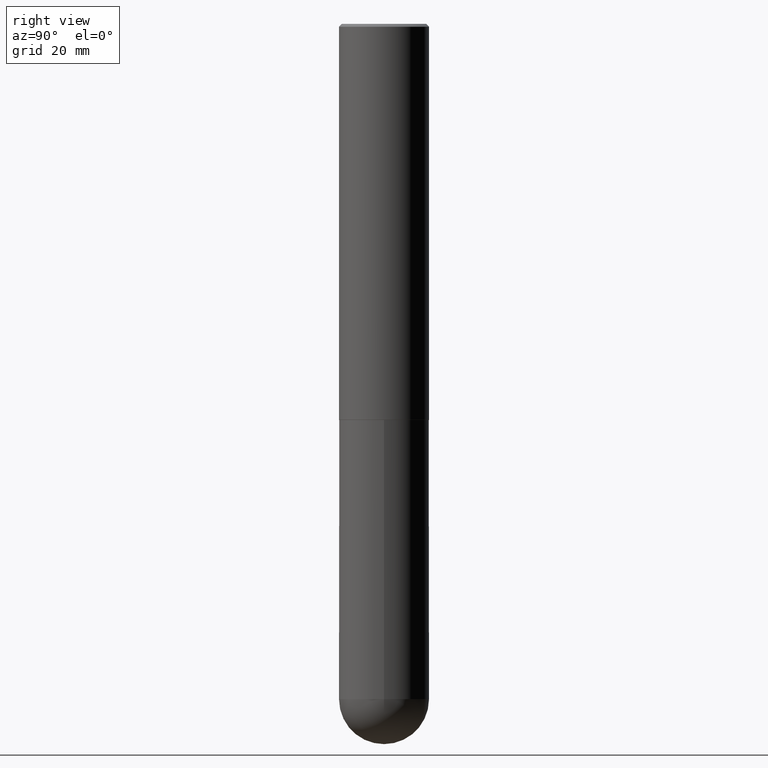
[diagram: clean part render]
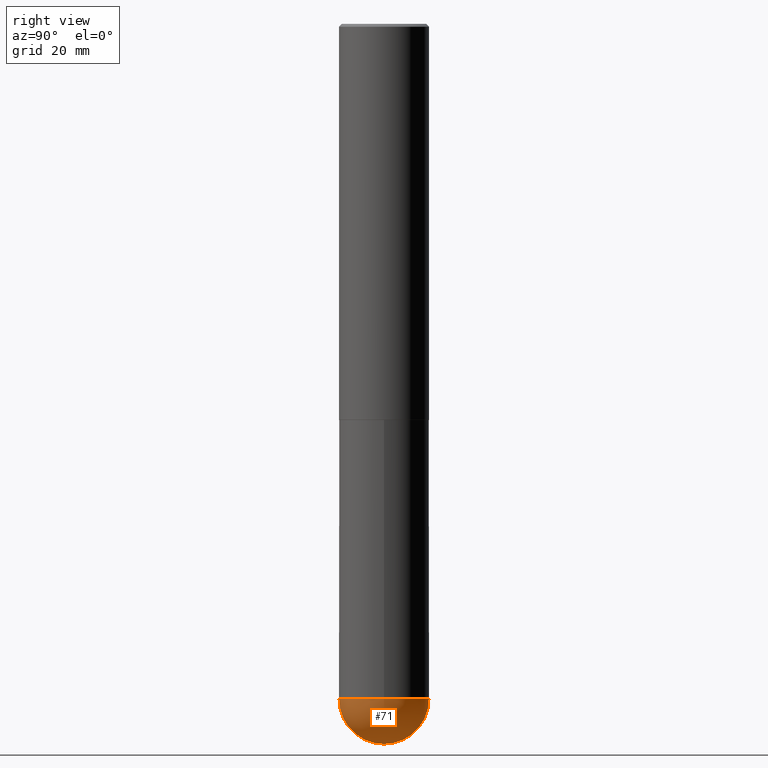
[diagram: same view with one face highlighted and labeled with its STEP entity id]
A machine part, right view. The second image highlights one B-rep face of the part: STEP entity #71.
In plain terms, the highlighted spherical surface has radius 7.9375 mm.
Its self-contained STEP definition (entity closure, byte-faithful):
#27 = AXIS2_PLACEMENT_3D ( 'NONE', #35, #124, #328 ) ;
#33 = VERTEX_POINT ( 'NONE', #52 ) ;
#35 = CARTESIAN_POINT ( 'NONE',  ( 1.146313502899282780E-28, -1.636631877582724203E-14, -4.687500000000000000 ) ) ;
#51 = DIRECTION ( 'NONE',  ( -2.445468806185136597E-29, 3.491481338843145583E-15, 1.000000000000000000 ) ) ;
#52 = CARTESIAN_POINT ( 'NONE',  ( -2.220446049250200668E-15, -0.3125000000000168199, -4.687499999999998224 ) ) ;
#62 = DIRECTION ( 'NONE',  ( 6.982962677686265922E-15, 1.000000000000000000, -3.496765431890253764E-15 ) ) ;
#70 = CARTESIAN_POINT ( 'NONE',  ( 0.3125000000000000000, -1.516612206559990666E-14, -4.687500000000000000 ) ) ;
#71 = ADVANCED_FACE ( 'NONE', ( #377 ), #88, .T. ) ;
#75 = CARTESIAN_POINT ( 'NONE',  ( 1.113201525107894267E-28, -1.684050114396729706E-14, -4.687500000000000000 ) ) ;
#83 = VERTEX_POINT ( 'NONE', #282 ) ;
#84 = ORIENTED_EDGE ( 'NONE', *, *, #253, .F. ) ;
#88 = SPHERICAL_SURFACE ( 'NONE', #330, 0.3125000000000002776 ) ;
#109 = DIRECTION ( 'NONE',  ( 6.982962677686265922E-15, 1.000000000000000000, 0.000000000000000000 ) ) ;
#124 = DIRECTION ( 'NONE',  ( -2.445468806185136597E-29, 3.491481338843145583E-15, 1.000000000000000000 ) ) ;
#129 = AXIS2_PLACEMENT_3D ( 'NONE', #332, #51, #261 ) ;
#148 = EDGE_CURVE ( 'NONE', #33, #185, #171, .T. ) ;
#171 = CIRCLE ( 'NONE', #27, 0.3125000000000000000 ) ;
#176 = VERTEX_POINT ( 'NONE', #301 ) ;
#182 = CIRCLE ( 'NONE', #239, 0.3125000000000002776 ) ;
#185 = VERTEX_POINT ( 'NONE', #70 ) ;
#188 = ORIENTED_EDGE ( 'NONE', *, *, #338, .F. ) ;
#197 = CIRCLE ( 'NONE', #268, 0.3125000000000002776 ) ;
#222 = DIRECTION ( 'NONE',  ( -1.000000000000000000, 7.105427357601001070E-15, -4.926315508542082329E-29 ) ) ;
#223 = DIRECTION ( 'NONE',  ( -1.000000000000000000, 6.982962677686265922E-15, -4.883557194083112901E-29 ) ) ;
#239 = AXIS2_PLACEMENT_3D ( 'NONE', #75, #222, #320 ) ;
#253 = EDGE_CURVE ( 'NONE', #185, #83, #259, .T. ) ;
#259 = CIRCLE ( 'NONE', #129, 0.3125000000000000000 ) ;
#261 = DIRECTION ( 'NONE',  ( 1.000000000000000000, -6.982962677686269077E-15, 0.000000000000000000 ) ) ;
#268 = AXIS2_PLACEMENT_3D ( 'NONE', #402, #354, #109 ) ;
#282 = CARTESIAN_POINT ( 'NONE',  ( 2.182175836777072337E-15, 0.3124999999999835132, -4.687500000000000888 ) ) ;
#300 = EDGE_LOOP ( 'NONE', ( #188, #309, #84, #401 ) ) ;
#301 = CARTESIAN_POINT ( 'NONE',  ( 1.190958622628022629E-28, -1.791245395611910360E-14, -5.000000000000000000 ) ) ;
#309 = ORIENTED_EDGE ( 'NONE', *, *, #408, .T. ) ;
#320 = DIRECTION ( 'NONE',  ( -7.105427357601000281E-15, -1.000000000000000000, 0.000000000000000000 ) ) ;
#328 = DIRECTION ( 'NONE',  ( 1.000000000000000000, -6.982962677686269077E-15, 0.000000000000000000 ) ) ;
#330 = AXIS2_PLACEMENT_3D ( 'NONE', #341, #223, #62 ) ;
#332 = CARTESIAN_POINT ( 'NONE',  ( 1.146313502899282780E-28, -1.636631877582724203E-14, -4.687500000000000000 ) ) ;
#338 = EDGE_CURVE ( 'NONE', #176, #33, #182, .T. ) ;
#341 = CARTESIAN_POINT ( 'NONE',  ( 1.113201525107894267E-28, -1.684050114396729706E-14, -4.687500000000000000 ) ) ;
#354 = DIRECTION ( 'NONE',  ( 1.000000000000000000, -6.982962677686265922E-15, 4.883557194083112340E-29 ) ) ;
#377 = FACE_OUTER_BOUND ( 'NONE', #300, .T. ) ;
#401 = ORIENTED_EDGE ( 'NONE', *, *, #148, .F. ) ;
#402 = CARTESIAN_POINT ( 'NONE',  ( 1.113201525107894267E-28, -1.684050114396729706E-14, -4.687500000000000000 ) ) ;
#408 = EDGE_CURVE ( 'NONE', #176, #83, #197, .T. ) ;